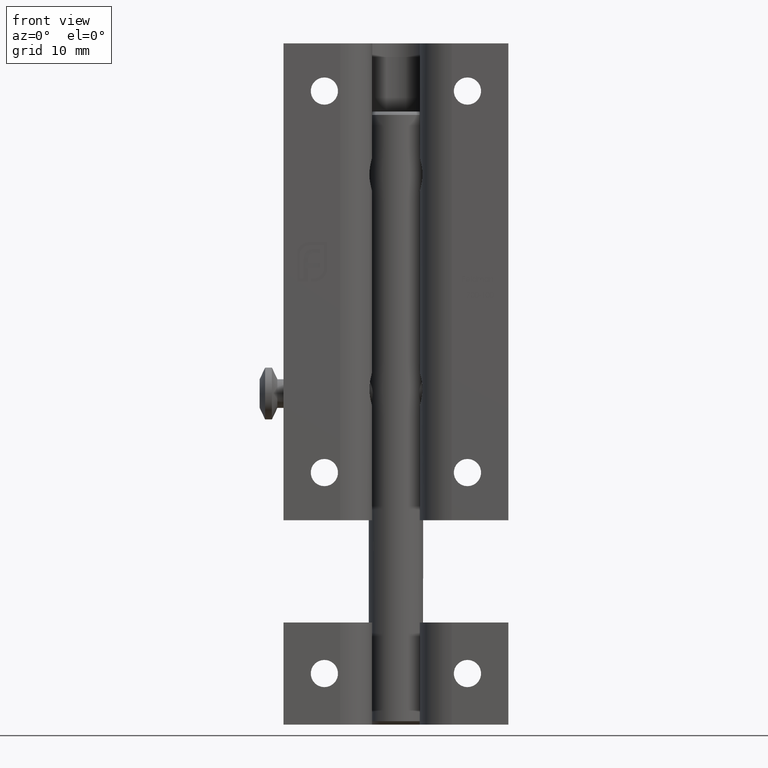
[diagram: clean part render]
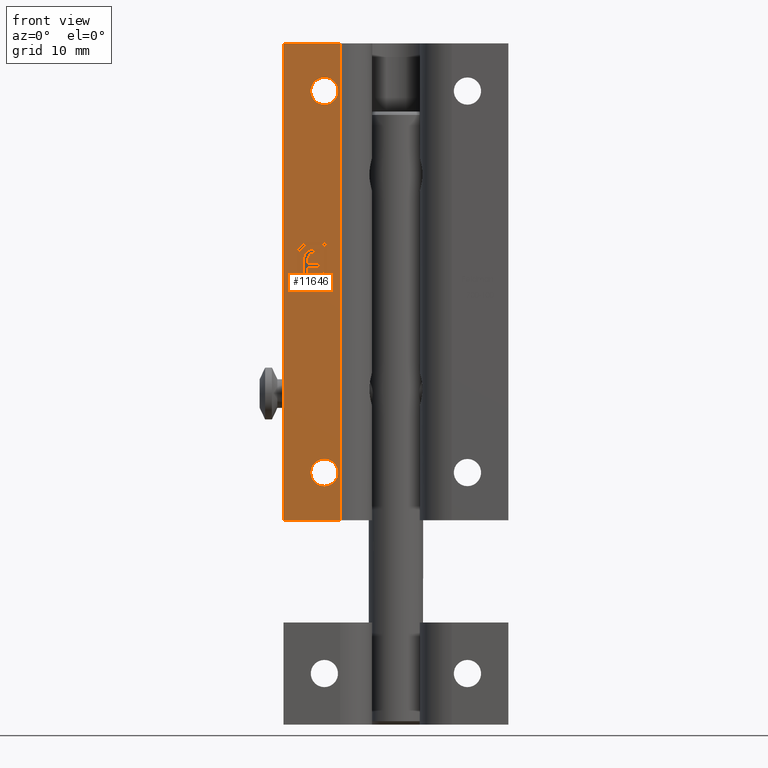
[diagram: same view with one face highlighted and labeled with its STEP entity id]
A machine part, front view. The second image highlights one B-rep face of the part: STEP entity #11646.
In plain terms, the highlighted planar face has unit normal (0, 1, 0).
Its self-contained STEP definition (entity closure, byte-faithful):
#60 = CARTESIAN_POINT ( 'NONE',  ( -10.10317604303577177, 0.000000000000000000, 3.889666433403312418 ) ) ;
#82 = CARTESIAN_POINT ( 'NONE',  ( -14.62223569108808796, -0.000000000000000000, 3.885432932975003251 ) ) ;
#89 = VERTEX_POINT ( 'NONE', #6036 ) ;
#203 = EDGE_CURVE ( 'NONE', #7521, #13235, #14881, .T. ) ;
#277 = CARTESIAN_POINT ( 'NONE',  ( -12.28418840599355200, 0.000000000000000000, 0.000000000000000000 ) ) ;
#299 = CARTESIAN_POINT ( 'NONE',  ( -13.61346904144832770, 0.000000000000000000, 5.010722171355585175 ) ) ;
#307 = VERTEX_POINT ( 'NONE', #7564 ) ;
#309 = CARTESIAN_POINT ( 'NONE',  ( -13.89516047767086881, 0.000000000000000000, 5.375413337686390847 ) ) ;
#311 = CARTESIAN_POINT ( 'NONE',  ( -13.44117464345564450, 0.000000000000000000, 3.881502216001866401 ) ) ;
#316 = CARTESIAN_POINT ( 'NONE',  ( -16.50000000000000000, 0.000000000000000000, -35.00000000000000000 ) ) ;
#351 = LINE ( 'NONE', #10546, #9461 ) ;
#412 = CARTESIAN_POINT ( 'NONE',  ( -11.21486712359753568, 0.000000000000000000, 0.1983647308749326710 ) ) ;
#427 = CARTESIAN_POINT ( 'NONE',  ( -12.91399946267654464, 0.000000000000000000, 2.109867039888033702 ) ) ;
#459 = CARTESIAN_POINT ( 'NONE',  ( -14.07222981671132800, 0.000000000000000000, 5.207563492515659753 ) ) ;
#484 = ORIENTED_EDGE ( 'NONE', *, *, #3095, .T. ) ;
#499 = EDGE_CURVE ( 'NONE', #7847, #2520, #2951, .T. ) ;
#500 = DIRECTION ( 'NONE',  ( 3.142292764019396830E-14, -0.000000000000000000, 1.000000000000000000 ) ) ;
#513 = CARTESIAN_POINT ( 'NONE',  ( -14.62265353312207949, 0.000000000000000000, 0.000000000000000000 ) ) ;
#643 = CARTESIAN_POINT ( 'NONE',  ( -10.17006340656878649, -0.000000000000000000, 1.461998794145167535 ) ) ;
#670 = CARTESIAN_POINT ( 'NONE',  ( -10.58572421636813310, 0.000000000000000000, 1.668727680216067766 ) ) ;
#675 = CARTESIAN_POINT ( 'NONE',  ( -8.192006389780432940, 0.000000000000000000, -35.00000000000000000 ) ) ;
#700 = VECTOR ( 'NONE', #7915, 1000.000000000000000 ) ;
#702 = CARTESIAN_POINT ( 'NONE',  ( -13.44117464345564450, 0.000000000000000000, 3.881502216001866401 ) ) ;
#707 = EDGE_CURVE ( 'NONE', #14064, #9397, #11871, .T. ) ;
#718 = CARTESIAN_POINT ( 'NONE',  ( -12.88579320570731213, 0.000000000000000000, 4.588625281920204024 ) ) ;
#722 = CARTESIAN_POINT ( 'NONE',  ( -11.00940417459630360, 0.000000000000000000, 0.8980639141590855967 ) ) ;
#767 = CARTESIAN_POINT ( 'NONE',  ( -12.53639140035715016, -0.000000000000000000, 4.731760121594401625 ) ) ;
#806 = CARTESIAN_POINT ( 'NONE',  ( -13.22736351545595213, 0.000000000000000000, 4.293754051528963167 ) ) ;
#827 = DIRECTION ( 'NONE',  ( -5.128799683801839653E-14, -0.000000000000000000, -1.000000000000000000 ) ) ;
#878 = CARTESIAN_POINT ( 'NONE',  ( -13.72458961896299279, 0.000000000000000000, 4.904362024725915425 ) ) ;
#931 = VERTEX_POINT ( 'NONE', #13838 ) ;
#966 = EDGE_CURVE ( 'NONE', #11146, #15266, #2588, .T. ) ;
#1025 = CARTESIAN_POINT ( 'NONE',  ( -12.39136544531972284, -0.000000000000000000, 4.145672816739518929 ) ) ;
#1074 = EDGE_CURVE ( 'NONE', #11484, #5861, #9702, .T. ) ;
#1110 = EDGE_CURVE ( 'NONE', #14153, #12324, #12958, .T. ) ;
#1138 = EDGE_CURVE ( 'NONE', #12324, #12762, #5371, .T. ) ;
#1153 = EDGE_CURVE ( 'NONE', #7700, #11484, #12072, .T. ) ;
#1240 = CARTESIAN_POINT ( 'NONE',  ( -13.54235907638162217, -0.000000000000000000, 3.209746666631985601 ) ) ;
#1316 = ORIENTED_EDGE ( 'NONE', *, *, #9369, .T. ) ;
#1323 = B_SPLINE_CURVE_WITH_KNOTS ( 'NONE', 3,
 ( #9157, #3120, #11551, #11451, #806, #13884, #2032 ),
 .UNSPECIFIED., .F., .F.,
 ( 4, 1, 1, 1, 4 ),
 ( 0.000000000000000000, 0.2650465622674543775, 0.5182727197139316289, 0.7624607574988796488, 1.000000000000000000 ),
 .UNSPECIFIED. ) ;
#1351 = EDGE_CURVE ( 'NONE', #7788, #7847, #14886, .T. ) ;
#1434 = CARTESIAN_POINT ( 'NONE',  ( -13.23361789003869404, 0.000000000000000000, 5.243443540006348158 ) ) ;
#1451 = CARTESIAN_POINT ( 'NONE',  ( -11.50100669384052843, 0.000000000000000000, 4.818054583624912901 ) ) ;
#1530 = ORIENTED_EDGE ( 'NONE', *, *, #5675, .T. ) ;
#1606 = FACE_BOUND ( 'NONE', #4799, .T. ) ;
#1621 = B_SPLINE_CURVE_WITH_KNOTS ( 'NONE', 3,
 ( #12866, #1025, #15070, #10645, #7103, #8182, #10594 ),
 .UNSPECIFIED., .F., .F.,
 ( 4, 1, 1, 1, 4 ),
 ( 0.000000000000000000, 0.2524546485597143342, 0.5031396088336669292, 0.7494862726423894284, 1.000000000000000000 ),
 .UNSPECIFIED. ) ;
#1691 = CARTESIAN_POINT ( 'NONE',  ( -13.07116191692449192, 0.000000000000000000, 5.768448980400471271 ) ) ;
#1738 = ORIENTED_EDGE ( 'NONE', *, *, #7416, .T. ) ;
#1739 = CARTESIAN_POINT ( 'NONE',  ( -12.86115893005340816, -0.000000000000000000, 3.630166364084306707 ) ) ;
#1742 = CARTESIAN_POINT ( 'NONE',  ( -10.10317604303577177, 0.000000000000000000, 1.968742710520177353 ) ) ;
#1753 = ORIENTED_EDGE ( 'NONE', *, *, #1153, .T. ) ;
#1769 = ORIENTED_EDGE ( 'NONE', *, *, #1138, .T. ) ;
#1816 = B_SPLINE_CURVE_WITH_KNOTS ( 'NONE', 3,
 ( #8810, #1739, #12344, #12399, #7615, #2993, #4196 ),
 .UNSPECIFIED., .F., .F.,
 ( 4, 1, 1, 1, 4 ),
 ( 0.000000000000000000, 0.2296577939907741839, 0.4728894664265899106, 0.7276593582172843355, 1.000000000000000000 ),
 .UNSPECIFIED. ) ;
#1834 = CARTESIAN_POINT ( 'NONE',  ( -14.16171433197381546, 0.000000000000000000, 3.993388716965996732 ) ) ;
#1857 = CARTESIAN_POINT ( 'NONE',  ( -12.59092971693360141, 0.000000000000000000, 4.715418707721017455 ) ) ;
#1887 = CARTESIAN_POINT ( 'NONE',  ( -13.76008289665097628, -0.000000000000000000, 4.867411171868104347 ) ) ;
#1893 = ORIENTED_EDGE ( 'NONE', *, *, #3935, .T. ) ;
#1900 = CARTESIAN_POINT ( 'NONE',  ( -13.65499322972569907, -0.000000000000000000, 5.534099549036850973 ) ) ;
#1924 = ORIENTED_EDGE ( 'NONE', *, *, #1351, .T. ) ;
#1930 = VECTOR ( 'NONE', #9780, 1000.000000000000000 ) ;
#2001 = CARTESIAN_POINT ( 'NONE',  ( -11.11900968055412520, 0.000000000000000000, 0.7927819420741029077 ) ) ;
#2014 = LINE ( 'NONE', #2789, #8696 ) ;
#2032 = CARTESIAN_POINT ( 'NONE',  ( -13.12626911511414818, 0.000000000000000000, 4.400513179379520246 ) ) ;
#2070 = DIRECTION ( 'NONE',  ( 0.000000000000000000, -0.000000000000000000, 1.000000000000000000 ) ) ;
#2131 = DIRECTION ( 'NONE',  ( 0.000000000000000000, 1.000000000000000000, 0.000000000000000000 ) ) ;
#2134 = EDGE_CURVE ( 'NONE', #89, #10956, #6416, .T. ) ;
#2147 = EDGE_LOOP ( 'NONE', ( #2992, #1924, #9509, #12876, #14043, #14104, #2296, #3822, #11013, #1893, #1753, #3170, #12048, #9723, #4448, #13385, #1769, #3861, #1530, #8322, #4708, #7463, #11279, #4678, #3593, #2681, #8283, #4006, #14971, #7368, #10438, #12422, #14924, #12659, #5433, #9350, #484, #1738, #4902, #10413 ) ) ;
#2200 = DIRECTION ( 'NONE',  ( 0.000000000000000000, -0.000000000000000000, -1.000000000000000000 ) ) ;
#2207 = CARTESIAN_POINT ( 'NONE',  ( -10.50000000000000000, 0.000000000000000000, -25.99999999999999645 ) ) ;
#2260 = CARTESIAN_POINT ( 'NONE',  ( -12.33256749326451285, -0.000000000000000000, 4.166733782436143230 ) ) ;
#2266 = DIRECTION ( 'NONE',  ( 0.000000000000000000, -0.000000000000000000, -1.000000000000000000 ) ) ;
#2296 = ORIENTED_EDGE ( 'NONE', *, *, #6567, .T. ) ;
#2322 = VERTEX_POINT ( 'NONE', #11111 ) ;
#2450 = EDGE_CURVE ( 'NONE', #6056, #2322, #6314, .T. ) ;
#2459 = B_SPLINE_CURVE_WITH_KNOTS ( 'NONE', 3,
 ( #5334, #1900, #7769, #8925, #12506, #5496, #10290 ),
 .UNSPECIFIED., .F., .F.,
 ( 4, 1, 1, 1, 4 ),
 ( 0.000000000000000000, 0.2494004055988085222, 0.4982698082868723399, 0.7477365097776053071, 1.000000000000000000 ),
 .UNSPECIFIED. ) ;
#2520 = VERTEX_POINT ( 'NONE', #1742 ) ;
#2588 = LINE ( 'NONE', #10050, #11699 ) ;
#2633 = CARTESIAN_POINT ( 'NONE',  ( -14.36256489304743411, 0.000000000000000000, 4.809890366223465996 ) ) ;
#2670 = CARTESIAN_POINT ( 'NONE',  ( -13.72458961896299279, 0.000000000000000000, 4.904362024725915425 ) ) ;
#2681 = ORIENTED_EDGE ( 'NONE', *, *, #966, .T. ) ;
#2779 = CARTESIAN_POINT ( 'NONE',  ( -13.20557865558533983, -1.355252715606880543E-17, 5.731280615815255608 ) ) ;
#2789 = CARTESIAN_POINT ( 'NONE',  ( -16.50000000000000000, 0.000000000000000000, 35.00000000000000000 ) ) ;
#2844 = CARTESIAN_POINT ( 'NONE',  ( -12.85101835700824680, 0.000000000000000000, 3.661068346162818177 ) ) ;
#2900 = AXIS2_PLACEMENT_3D ( 'NONE', #3372, #2131, #10468 ) ;
#2907 = CARTESIAN_POINT ( 'NONE',  ( -12.85101835700824680, 0.000000000000000000, 3.661068346162818177 ) ) ;
#2919 = CARTESIAN_POINT ( 'NONE',  ( -11.91297890807176074, -0.000000000000000000, 4.817272224833722305 ) ) ;
#2934 = LINE ( 'NONE', #277, #11325 ) ;
#2951 = LINE ( 'NONE', #60, #9288 ) ;
#2957 = CARTESIAN_POINT ( 'NONE',  ( -11.00940417459630360, 0.000000000000000000, 0.8980639141590855967 ) ) ;
#2984 = CARTESIAN_POINT ( 'NONE',  ( -13.99540732942276300, 0.000000000000000000, 4.550226223210583676 ) ) ;
#2992 = ORIENTED_EDGE ( 'NONE', *, *, #15135, .T. ) ;
#2993 = CARTESIAN_POINT ( 'NONE',  ( -12.91367384563480236, -0.000000000000000000, 3.282077637441727536 ) ) ;
#3035 = EDGE_CURVE ( 'NONE', #9904, #14153, #9887, .T. ) ;
#3066 = CARTESIAN_POINT ( 'NONE',  ( -12.72366599094108786, 0.000000000000000000, 3.903107813290452643 ) ) ;
#3090 = CARTESIAN_POINT ( 'NONE',  ( -11.15869272136560753, 0.000000000000000000, 4.518894331700490596 ) ) ;
#3095 = EDGE_CURVE ( 'NONE', #8668, #9377, #4442, .T. ) ;
#3120 = CARTESIAN_POINT ( 'NONE',  ( -13.42219583949539441, -0.000000000000000000, 3.932218595878612444 ) ) ;
#3170 = ORIENTED_EDGE ( 'NONE', *, *, #1074, .T. ) ;
#3180 = DIRECTION ( 'NONE',  ( -1.000000000000000000, -0.000000000000000000, -1.770657033693493779E-14 ) ) ;
#3270 = VECTOR ( 'NONE', #2070, 1000.000000000000000 ) ;
#3313 = VECTOR ( 'NONE', #500, 1000.000000000000000 ) ;
#3339 = ORIENTED_EDGE ( 'NONE', *, *, #7235, .T. ) ;
#3372 = CARTESIAN_POINT ( 'NONE',  ( -10.50000000000000000, 0.000000000000000000, 28.00000000000000355 ) ) ;
#3392 = CARTESIAN_POINT ( 'NONE',  ( -12.74539997332963281, 0.000000000000000000, 4.663368840172081420 ) ) ;
#3411 = CARTESIAN_POINT ( 'NONE',  ( -11.15869272136560575, 0.000000000000000000, 4.818054583624912901 ) ) ;
#3424 = CARTESIAN_POINT ( 'NONE',  ( -14.36256489304743411, 0.000000000000000000, 4.809890366223465996 ) ) ;
#3498 = DIRECTION ( 'NONE',  ( 1.000000000000000000, -0.000000000000000000, 1.150014362089557730E-14 ) ) ;
#3571 = CARTESIAN_POINT ( 'NONE',  ( -10.50000000000000000, 0.000000000000000000, -27.99999999999999645 ) ) ;
#3593 = ORIENTED_EDGE ( 'NONE', *, *, #5592, .T. ) ;
#3610 = CARTESIAN_POINT ( 'NONE',  ( -13.69309906612884475, 0.000000000000000000, 5.510846745976207828 ) ) ;
#3621 = CARTESIAN_POINT ( 'NONE',  ( -12.03634609202107875, 0.000000000000000000, 2.109867039888033702 ) ) ;
#3636 = CARTESIAN_POINT ( 'NONE',  ( -14.52251276381042899, 0.000000000000000000, 4.467580840298241540 ) ) ;
#3645 = CARTESIAN_POINT ( 'NONE',  ( -12.16894251106374725, 0.000000000000000000, 4.205937893213496537 ) ) ;
#3649 = DIRECTION ( 'NONE',  ( -0.000000000000000000, -0.000000000000000000, -1.000000000000000000 ) ) ;
#3660 = EDGE_CURVE ( 'NONE', #13691, #9142, #1816, .T. ) ;
#3712 = CARTESIAN_POINT ( 'NONE',  ( -13.09654552205322275, 0.000000000000000000, 5.292870966762778018 ) ) ;
#3775 = CARTESIAN_POINT ( 'NONE',  ( -11.10387583309875303, 0.000000000000000000, 0.2600886400746442728 ) ) ;
#3822 = ORIENTED_EDGE ( 'NONE', *, *, #7466, .T. ) ;
#3861 = ORIENTED_EDGE ( 'NONE', *, *, #11003, .T. ) ;
#3918 = CARTESIAN_POINT ( 'NONE',  ( -13.69309906612884475, 0.000000000000000000, 5.510846745976207828 ) ) ;
#3935 = EDGE_CURVE ( 'NONE', #3979, #7700, #351, .T. ) ;
#3972 = CARTESIAN_POINT ( 'NONE',  ( -11.32903091304796561, 0.000000000000000000, 0.1444498286057782355 ) ) ;
#3979 = VERTEX_POINT ( 'NONE', #4854 ) ;
#4006 = ORIENTED_EDGE ( 'NONE', *, *, #4489, .T. ) ;
#4032 = CARTESIAN_POINT ( 'NONE',  ( -13.16065473897691263, -0.000000000000000000, 5.743702792753435205 ) ) ;
#4046 = B_SPLINE_CURVE_WITH_KNOTS ( 'NONE', 3,
 ( #7736, #7793, #12579, #10196, #6679, #643, #12528 ),
 .UNSPECIFIED., .F., .F.,
 ( 4, 1, 1, 1, 4 ),
 ( 0.000000000000000000, 0.2525049582863184705, 0.5021773156323381393, 0.7501012456036263432, 1.000000000000000000 ),
 .UNSPECIFIED. ) ;
#4055 = CIRCLE ( 'NONE', #2900, 2.000000000000001776 ) ;
#4069 = CARTESIAN_POINT ( 'NONE',  ( -11.15869272136560575, 0.000000000000000000, 4.219734079776067404 ) ) ;
#4196 = CARTESIAN_POINT ( 'NONE',  ( -12.91399946267654464, 0.000000000000000000, 3.243526941917424633 ) ) ;
#4266 = CARTESIAN_POINT ( 'NONE',  ( -10.18248558350696342, 0.000000000000000000, 1.417074877536738997 ) ) ;
#4281 = CARTESIAN_POINT ( 'NONE',  ( -13.12626911511414818, 0.000000000000000000, 4.400513179379520246 ) ) ;
#4285 = CARTESIAN_POINT ( 'NONE',  ( -14.16545735864109012, 0.000000000000000000, 3.841847445766270130 ) ) ;
#4342 = CARTESIAN_POINT ( 'NONE',  ( -11.36353997611163891, 0.000000000000000000, 0.6272462036993181611 ) ) ;
#4391 = DIRECTION ( 'NONE',  ( -3.458957926284952733E-14, -0.000000000000000000, -1.000000000000000000 ) ) ;
#4442 = LINE ( 'NONE', #14717, #3313 ) ;
#4448 = ORIENTED_EDGE ( 'NONE', *, *, #3035, .T. ) ;
#4489 = EDGE_CURVE ( 'NONE', #7119, #7125, #1621, .T. ) ;
#4510 = VERTEX_POINT ( 'NONE', #7351 ) ;
#4551 = CARTESIAN_POINT ( 'NONE',  ( -16.50000000000000000, 0.000000000000000000, 35.00000000000000000 ) ) ;
#4598 = CARTESIAN_POINT ( 'NONE',  ( -10.50000000000000000, 0.000000000000000000, 30.00000000000000711 ) ) ;
#4639 = VECTOR ( 'NONE', #3498, 1000.000000000000000 ) ;
#4648 = CARTESIAN_POINT ( 'NONE',  ( -12.36349794646474365, 0.000000000000000000, 4.156752974107768672 ) ) ;
#4678 = ORIENTED_EDGE ( 'NONE', *, *, #12547, .T. ) ;
#4708 = ORIENTED_EDGE ( 'NONE', *, *, #6073, .T. ) ;
#4799 = EDGE_LOOP ( 'NONE', ( #3339 ) ) ;
#4830 = CARTESIAN_POINT ( 'NONE',  ( -14.60705808407206341, 0.000000000000000000, 4.099617897534930222 ) ) ;
#4854 = CARTESIAN_POINT ( 'NONE',  ( -12.49645805843115198, 0.000000000000000000, 0.4571961744809890371 ) ) ;
#4871 = EDGE_CURVE ( 'NONE', #12496, #12689, #6265, .T. ) ;
#4902 = ORIENTED_EDGE ( 'NONE', *, *, #2134, .T. ) ;
#4906 = CARTESIAN_POINT ( 'NONE',  ( -13.54381051935954083, 0.000000000000000000, 3.140891066013529631 ) ) ;
#4949 = CARTESIAN_POINT ( 'NONE',  ( -12.65391082260190103, 0.000000000000000000, 5.353393981805458779 ) ) ;
#4953 = CARTESIAN_POINT ( 'NONE',  ( -12.65391082260190103, 0.000000000000000000, 5.353393981805458779 ) ) ;
#4985 = CARTESIAN_POINT ( 'NONE',  ( -14.08323202624081105, 0.000000000000000000, 0.000000000000000000 ) ) ;
#5069 = CARTESIAN_POINT ( 'NONE',  ( -12.91399946267654109, 0.000000000000000000, 0.2285980872404944908 ) ) ;
#5305 = VERTEX_POINT ( 'NONE', #6561 ) ;
#5334 = CARTESIAN_POINT ( 'NONE',  ( -13.69309906612884475, 0.000000000000000000, 5.510846745976207828 ) ) ;
#5371 = LINE ( 'NONE', #12551, #13958 ) ;
#5379 = CARTESIAN_POINT ( 'NONE',  ( -14.05632296374947643, 0.000000000000000000, 4.418931424541740149 ) ) ;
#5410 = EDGE_CURVE ( 'NONE', #13924, #3979, #12013, .T. ) ;
#5422 = CARTESIAN_POINT ( 'NONE',  ( -12.59092971693360141, 0.000000000000000000, 4.715418707721017455 ) ) ;
#5433 = ORIENTED_EDGE ( 'NONE', *, *, #203, .T. ) ;
#5456 = VERTEX_POINT ( 'NONE', #15340 ) ;
#5461 = CARTESIAN_POINT ( 'NONE',  ( -12.77259566674731950, 0.000000000000000000, 3.827653029397890094 ) ) ;
#5471 = CARTESIAN_POINT ( 'NONE',  ( -16.50000000000000000, 0.000000000000000000, 35.00000000000000000 ) ) ;
#5496 = CARTESIAN_POINT ( 'NONE',  ( -13.24858992927630297, -0.000000000000000000, 5.717563234487216484 ) ) ;
#5515 = CARTESIAN_POINT ( 'NONE',  ( -12.84023606388257477, -0.000000000000000000, 3.690639720102486532 ) ) ;
#5592 = EDGE_CURVE ( 'NONE', #9717, #11146, #11088, .T. ) ;
#5675 = EDGE_CURVE ( 'NONE', #10674, #10989, #15195, .T. ) ;
#5819 = DIRECTION ( 'NONE',  ( 0.000000000000000000, 0.000000000000000000, 1.000000000000000000 ) ) ;
#5861 = VERTEX_POINT ( 'NONE', #6982 ) ;
#5981 = EDGE_CURVE ( 'NONE', #2520, #6056, #4046, .T. ) ;
#5984 = VERTEX_POINT ( 'NONE', #702 ) ;
#6036 = CARTESIAN_POINT ( 'NONE',  ( -14.36256489304743411, 0.000000000000000000, 4.809890366223465996 ) ) ;
#6039 = VERTEX_POINT ( 'NONE', #8945 ) ;
#6056 = VERTEX_POINT ( 'NONE', #4266 ) ;
#6073 = EDGE_CURVE ( 'NONE', #5984, #14064, #1323, .T. ) ;
#6265 = LINE ( 'NONE', #10158, #700 ) ;
#6309 = DIRECTION ( 'NONE',  ( -1.000000000000000000, -0.000000000000000000, -1.394392414033622872E-14 ) ) ;
#6314 = B_SPLINE_CURVE_WITH_KNOTS ( 'NONE', 3,
 ( #10024, #9035, #8928, #8875, #13707, #14909, #7620 ),
 .UNSPECIFIED., .F., .F.,
 ( 4, 1, 1, 1, 4 ),
 ( 0.000000000000000000, 0.2531688454537568966, 0.5035614958825502807, 0.7514299623983492493, 1.000000000000000000 ),
 .UNSPECIFIED. ) ;
#6330 = CARTESIAN_POINT ( 'NONE',  ( -11.81414830178728970, 0.000000000000000000, 0.01559544905000916082 ) ) ;
#6416 = B_SPLINE_CURVE_WITH_KNOTS ( 'NONE', 3,
 ( #2633, #9802, #10999, #459, #309, #10953, #3918 ),
 .UNSPECIFIED., .F., .F.,
 ( 4, 1, 1, 1, 4 ),
 ( 0.000000000000000000, 0.2548261097762418159, 0.5042880443381981825, 0.7513476757168006115, 1.000000000000000000 ),
 .UNSPECIFIED. ) ;
#6443 = CARTESIAN_POINT ( 'NONE',  ( -11.95412075962079612, 0.000000000000000000, 4.219734079776067404 ) ) ;
#6494 = LINE ( 'NONE', #12268, #7766 ) ;
#6561 = CARTESIAN_POINT ( 'NONE',  ( -16.50000000000000000, 0.000000000000000000, 35.00000000000000000 ) ) ;
#6567 = EDGE_CURVE ( 'NONE', #4510, #13127, #9450, .T. ) ;
#6574 = CARTESIAN_POINT ( 'NONE',  ( -10.10317604303577177, 0.000000000000000000, 5.810590156286447261 ) ) ;
#6588 = B_SPLINE_CURVE_WITH_KNOTS ( 'NONE', 3,
 ( #7681, #15034, #3066, #5461, #6678, #5515, #2907 ),
 .UNSPECIFIED., .F., .F.,
 ( 4, 1, 1, 1, 4 ),
 ( 0.000000000000000000, 0.2455891591026261311, 0.4905057002791295417, 0.7406289399192080847, 1.000000000000000000 ),
 .UNSPECIFIED. ) ;
#6594 = CARTESIAN_POINT ( 'NONE',  ( -14.10675261009457593, 0.000000000000000000, 4.283215778886456881 ) ) ;
#6678 = CARTESIAN_POINT ( 'NONE',  ( -12.81905591801842803, 0.000000000000000000, 3.748728106881190403 ) ) ;
#6679 = CARTESIAN_POINT ( 'NONE',  ( -10.14531721892174865, 0.000000000000000000, 1.551491616197590684 ) ) ;
#6724 = CARTESIAN_POINT ( 'NONE',  ( -10.40291945334601209, 0.000000000000000000, 0.9365523676230465000 ) ) ;
#6752 = CARTESIAN_POINT ( 'NONE',  ( -11.23961600784482151, 0.000000000000000000, 0.7047935450182917227 ) ) ;
#6801 = CARTESIAN_POINT ( 'NONE',  ( -11.00940417459630360, 0.000000000000000000, 0.8980639141590855967 ) ) ;
#6807 = CARTESIAN_POINT ( 'NONE',  ( -12.03634609202107519, 0.000000000000000000, 2.700023326335432738 ) ) ;
#6818 = VECTOR ( 'NONE', #13285, 1000.000000000000000 ) ;
#6824 = EDGE_CURVE ( 'NONE', #9142, #15300, #14480, .T. ) ;
#6950 = VERTEX_POINT ( 'NONE', #4598 ) ;
#6982 = CARTESIAN_POINT ( 'NONE',  ( -10.56037221751675936, 0.000000000000000000, 1.968742710520177353 ) ) ;
#6992 = EDGE_CURVE ( 'NONE', #10066, #9904, #6494, .T. ) ;
#7082 = CARTESIAN_POINT ( 'NONE',  ( -14.62265353312207949, 0.000000000000000000, 3.841847445766270130 ) ) ;
#7103 = CARTESIAN_POINT ( 'NONE',  ( -12.59720294484024450, 0.000000000000000000, 4.028425111272789572 ) ) ;
#7106 = DIRECTION ( 'NONE',  ( 0.000000000000000000, -0.000000000000000000, 1.000000000000000000 ) ) ;
#7117 = CARTESIAN_POINT ( 'NONE',  ( -11.14097711961894355, -0.000000000000000000, 0.2394560622383697657 ) ) ;
#7119 = VERTEX_POINT ( 'NONE', #7796 ) ;
#7125 = VERTEX_POINT ( 'NONE', #7685 ) ;
#7183 = CARTESIAN_POINT ( 'NONE',  ( -14.47820370451630367, 0.000000000000000000, 4.584735286274251642 ) ) ;
#7216 = CARTESIAN_POINT ( 'NONE',  ( -13.54381051935954083, 0.000000000000000000, 3.140891066013529631 ) ) ;
#7235 = EDGE_CURVE ( 'NONE', #6950, #6950, #4055, .T. ) ;
#7237 = CARTESIAN_POINT ( 'NONE',  ( -14.42428880224714938, 0.000000000000000000, 4.698899075724689567 ) ) ;
#7267 = B_SPLINE_CURVE_WITH_KNOTS ( 'NONE', 3,
 ( #7082, #82, #11797, #4830, #8315, #14305, #3636, #7183, #7237, #8372, #3424 ),
 .UNSPECIFIED., .F., .F.,
 ( 4, 1, 1, 1, 1, 1, 1, 1, 4 ),
 ( 0.000000000000000000, 0.1287995950824966374, 0.2547407131451109308, 0.3804244813366444711, 0.5045050273662052831, 0.6270584524605820054, 0.7500370845058724756, 0.8744898464228469948, 1.000000000000000000 ),
 .UNSPECIFIED. ) ;
#7313 = CARTESIAN_POINT ( 'NONE',  ( -13.48928667742433163, 0.000000000000000000, 3.714175404962777538 ) ) ;
#7351 = CARTESIAN_POINT ( 'NONE',  ( -11.10387583309875303, 0.000000000000000000, 0.2600886400746442728 ) ) ;
#7364 = FACE_OUTER_BOUND ( 'NONE', #10811, .T. ) ;
#7368 = ORIENTED_EDGE ( 'NONE', *, *, #3660, .T. ) ;
#7373 = DIRECTION ( 'NONE',  ( -1.000000000000000000, -0.000000000000000000, -0.000000000000000000 ) ) ;
#7400 = VECTOR ( 'NONE', #8461, 1000.000000000000000 ) ;
#7402 = CARTESIAN_POINT ( 'NONE',  ( -13.52114731410331672, 0.000000000000000000, 3.535361911055932449 ) ) ;
#7416 = EDGE_CURVE ( 'NONE', #9377, #89, #7267, .T. ) ;
#7463 = ORIENTED_EDGE ( 'NONE', *, *, #707, .T. ) ;
#7466 = EDGE_CURVE ( 'NONE', #13127, #13924, #2934, .T. ) ;
#7507 = CARTESIAN_POINT ( 'NONE',  ( -12.93368139677698636, 0.000000000000000000, 5.792037863360514294 ) ) ;
#7521 = VERTEX_POINT ( 'NONE', #427 ) ;
#7538 = VECTOR ( 'NONE', #12890, 1000.000000000000000 ) ;
#7564 = CARTESIAN_POINT ( 'NONE',  ( -11.15869272136560575, 0.000000000000000000, 2.109867039888033702 ) ) ;
#7615 = CARTESIAN_POINT ( 'NONE',  ( -12.91304361956390778, 0.000000000000000000, 3.356691832203205106 ) ) ;
#7618 = CARTESIAN_POINT ( 'NONE',  ( -13.54381051935954083, 0.000000000000000000, 0.4571961744809890371 ) ) ;
#7620 = CARTESIAN_POINT ( 'NONE',  ( -10.40291945334601209, 0.000000000000000000, 0.9365523676230465000 ) ) ;
#7637 = CARTESIAN_POINT ( 'NONE',  ( -12.65391082260190103, 0.000000000000000000, 5.810590156286447261 ) ) ;
#7644 = DIRECTION ( 'NONE',  ( 1.000000000000000000, 0.000000000000000000, 0.000000000000000000 ) ) ;
#7681 = CARTESIAN_POINT ( 'NONE',  ( -12.66207504000334794, 0.000000000000000000, 3.967809657102869814 ) ) ;
#7685 = CARTESIAN_POINT ( 'NONE',  ( -12.66207504000334794, 0.000000000000000000, 3.967809657102869814 ) ) ;
#7700 = VERTEX_POINT ( 'NONE', #15285 ) ;
#7736 = CARTESIAN_POINT ( 'NONE',  ( -10.10317604303577177, 0.000000000000000000, 1.968742710520177353 ) ) ;
#7751 = CARTESIAN_POINT ( 'NONE',  ( -12.91399946267654464, 0.000000000000000000, 0.000000000000000000 ) ) ;
#7761 = CARTESIAN_POINT ( 'NONE',  ( -10.67032265931586466, 0.000000000000000000, 1.389035643083381455 ) ) ;
#7766 = VECTOR ( 'NONE', #6309, 1000.000000000000000 ) ;
#7769 = CARTESIAN_POINT ( 'NONE',  ( -13.57886268874434599, 0.000000000000000000, 5.580555647194921143 ) ) ;
#7788 = VERTEX_POINT ( 'NONE', #7637 ) ;
#7793 = CARTESIAN_POINT ( 'NONE',  ( -10.10394190114853430, -0.000000000000000000, 1.921652882509248261 ) ) ;
#7796 = CARTESIAN_POINT ( 'NONE',  ( -12.36349794646474365, 0.000000000000000000, 4.156752974107768672 ) ) ;
#7816 = CARTESIAN_POINT ( 'NONE',  ( -10.73308000943858076, 0.000000000000000000, 1.256385313432260675 ) ) ;
#7847 = VERTEX_POINT ( 'NONE', #6574 ) ;
#7871 = LINE ( 'NONE', #12947, #8788 ) ;
#7872 = CARTESIAN_POINT ( 'NONE',  ( -11.63055042043576748, 0.000000000000000000, 0.5159009230275050095 ) ) ;
#7915 = DIRECTION ( 'NONE',  ( 1.000000000000000000, 0.000000000000000000, 0.000000000000000000 ) ) ;
#7917 = CARTESIAN_POINT ( 'NONE',  ( -10.56037221751675936, 0.000000000000000000, 5.353393981805458779 ) ) ;
#7925 = B_SPLINE_CURVE_WITH_KNOTS ( 'NONE', 3,
 ( #5422, #767, #8852, #10057, #12385, #2919, #8961 ),
 .UNSPECIFIED., .F., .F.,
 ( 4, 1, 1, 1, 4 ),
 ( 0.000000000000000000, 0.2252149288326735221, 0.4659087912857223790, 0.7243281698455820150, 1.000000000000000000 ),
 .UNSPECIFIED. ) ;
#7927 = CARTESIAN_POINT ( 'NONE',  ( -11.77291158733593868, 0.000000000000000000, 0.4831295257569785395 ) ) ;
#7996 = CARTESIAN_POINT ( 'NONE',  ( -10.44810380303804287, -0.000000000000000000, 0.8678670432230652931 ) ) ;
#8030 = CARTESIAN_POINT ( 'NONE',  ( -13.12626911511414818, 0.000000000000000000, 4.400513179379520246 ) ) ;
#8182 = CARTESIAN_POINT ( 'NONE',  ( -12.64033044120334992, -0.000000000000000000, 3.988127464454255477 ) ) ;
#8283 = ORIENTED_EDGE ( 'NONE', *, *, #13943, .T. ) ;
#8303 = CARTESIAN_POINT ( 'NONE',  ( -11.95412075962079612, 0.000000000000000000, 4.219734079776067404 ) ) ;
#8315 = CARTESIAN_POINT ( 'NONE',  ( -14.58857398077516976, 0.000000000000000000, 4.225409501822396052 ) ) ;
#8322 = ORIENTED_EDGE ( 'NONE', *, *, #8537, .T. ) ;
#8372 = CARTESIAN_POINT ( 'NONE',  ( -14.38319747088371159, -0.000000000000000000, 4.772789079703278148 ) ) ;
#8458 = CARTESIAN_POINT ( 'NONE',  ( -13.45687124409516677, -0.000000000000000000, 3.826911671547340799 ) ) ;
#8461 = DIRECTION ( 'NONE',  ( -1.000000000000000000, -0.000000000000000000, 8.387322791179642355E-15 ) ) ;
#8528 = VECTOR ( 'NONE', #827, 1000.000000000000000 ) ;
#8537 = EDGE_CURVE ( 'NONE', #10989, #5984, #8752, .T. ) ;
#8593 = CARTESIAN_POINT ( 'NONE',  ( -13.68718822153434544, -0.000000000000000000, 4.940161137758246390 ) ) ;
#8668 = VERTEX_POINT ( 'NONE', #513 ) ;
#8696 = VECTOR ( 'NONE', #13497, 1000.000000000000000 ) ;
#8704 = CARTESIAN_POINT ( 'NONE',  ( -11.94212959398924845, 0.000000000000000000, 0.001244252844152258890 ) ) ;
#8752 = B_SPLINE_CURVE_WITH_KNOTS ( 'NONE', 3,
 ( #7216, #1240, #14537, #7402, #7313, #8458, #311 ),
 .UNSPECIFIED., .F., .F.,
 ( 4, 1, 1, 1, 4 ),
 ( 0.000000000000000000, 0.2752367449667303401, 0.5313220627563618459, 0.7730509928784795592, 1.000000000000000000 ),
 .UNSPECIFIED. ) ;
#8788 = VECTOR ( 'NONE', #3649, 1000.000000000000000 ) ;
#8804 = VECTOR ( 'NONE', #12670, 1000.000000000000000 ) ;
#8810 = CARTESIAN_POINT ( 'NONE',  ( -12.85101835700824680, 0.000000000000000000, 3.661068346162818177 ) ) ;
#8852 = CARTESIAN_POINT ( 'NONE',  ( -12.42356637012226805, 0.000000000000000000, 4.765566088299681091 ) ) ;
#8867 = VERTEX_POINT ( 'NONE', #15366 ) ;
#8875 = CARTESIAN_POINT ( 'NONE',  ( -10.27588029390663849, 0.000000000000000000, 1.167493066460696838 ) ) ;
#8883 = CIRCLE ( 'NONE', #12076, 2.000000000000001776 ) ;
#8919 = EDGE_LOOP ( 'NONE', ( #14056 ) ) ;
#8925 = CARTESIAN_POINT ( 'NONE',  ( -13.45774067968315535, 0.000000000000000000, 5.637619863584992785 ) ) ;
#8928 = CARTESIAN_POINT ( 'NONE',  ( -10.22352243753976531, 0.000000000000000000, 1.289684066689730457 ) ) ;
#8945 = CARTESIAN_POINT ( 'NONE',  ( -13.20557865558533983, -1.355252715606880543E-17, 5.731280615815255608 ) ) ;
#8961 = CARTESIAN_POINT ( 'NONE',  ( -11.84332066631545288, 0.000000000000000000, 4.818054583624912901 ) ) ;
#8969 = CARTESIAN_POINT ( 'NONE',  ( -10.90304402796663297, 0.000000000000000000, 1.009184491673756234 ) ) ;
#9016 = CARTESIAN_POINT ( 'NONE',  ( -10.62089523255944634, 0.000000000000000000, 1.526108011068861625 ) ) ;
#9035 = CARTESIAN_POINT ( 'NONE',  ( -10.19621471842997096, -0.000000000000000000, 1.374455488909341661 ) ) ;
#9142 = VERTEX_POINT ( 'NONE', #12997 ) ;
#9157 = CARTESIAN_POINT ( 'NONE',  ( -13.44117464345564450, 0.000000000000000000, 3.881502216001866401 ) ) ;
#9248 = CARTESIAN_POINT ( 'NONE',  ( -11.03296624102125101, -0.000000000000000000, 0.3037346125863645274 ) ) ;
#9288 = VECTOR ( 'NONE', #2266, 1000.000000000000000 ) ;
#9300 = CARTESIAN_POINT ( 'NONE',  ( -10.89242543218187187, 0.000000000000000000, 0.3902396974368653737 ) ) ;
#9335 = CARTESIAN_POINT ( 'NONE',  ( -11.15869272136560753, 0.000000000000000000, 2.404945183111732998 ) ) ;
#9350 = ORIENTED_EDGE ( 'NONE', *, *, #13458, .T. ) ;
#9369 = EDGE_CURVE ( 'NONE', #5305, #12496, #2014, .T. ) ;
#9377 = VERTEX_POINT ( 'NONE', #9820 ) ;
#9397 = VERTEX_POINT ( 'NONE', #1857 ) ;
#9450 = B_SPLINE_CURVE_WITH_KNOTS ( 'NONE', 3,
 ( #3775, #7117, #412, #3972, #14488, #9761, #13379, #6330, #8704, #9853, #13330 ),
 .UNSPECIFIED., .F., .F.,
 ( 4, 1, 1, 1, 1, 1, 1, 1, 4 ),
 ( 0.000000000000000000, 0.1255101535771534216, 0.2499629154941273579, 0.3729415475394186053, 0.4954949726337948834, 0.6195755186633564726, 0.7452592868548886251, 0.8712004049175039455, 1.000000000000000000 ),
 .UNSPECIFIED. ) ;
#9461 = VECTOR ( 'NONE', #14124, 1000.000000000000000 ) ;
#9502 = DIRECTION ( 'NONE',  ( 1.000000000000000000, -0.000000000000000000, -1.408477185892479043E-15 ) ) ;
#9504 = EDGE_CURVE ( 'NONE', #2322, #4510, #14837, .T. ) ;
#9509 = ORIENTED_EDGE ( 'NONE', *, *, #499, .T. ) ;
#9516 = CARTESIAN_POINT ( 'NONE',  ( -12.49645805843115198, 0.000000000000000000, 0.000000000000000000 ) ) ;
#9702 = B_SPLINE_CURVE_WITH_KNOTS ( 'NONE', 3,
 ( #722, #13696, #8969, #15061, #7816, #7761, #9016, #670, #15113, #12498, #13905 ),
 .UNSPECIFIED., .F., .F.,
 ( 4, 1, 1, 1, 1, 1, 1, 1, 4 ),
 ( 0.000000000000000000, 0.1300684187865161212, 0.2563684206270612775, 0.3806087965304097431, 0.5030361388155299984, 0.6245546842700436807, 0.7464187435721220121, 0.8718075328738725815, 1.000000000000000000 ),
 .UNSPECIFIED. ) ;
#9717 = VERTEX_POINT ( 'NONE', #3411 ) ;
#9718 = EDGE_CURVE ( 'NONE', #12697, #12697, #8883, .T. ) ;
#9723 = ORIENTED_EDGE ( 'NONE', *, *, #6992, .T. ) ;
#9751 = CARTESIAN_POINT ( 'NONE',  ( -13.36626821968981993, 0.000000000000000000, 5.180686189883640935 ) ) ;
#9761 = CARTESIAN_POINT ( 'NONE',  ( -11.56594000953547585, 0.000000000000000000, 0.06415540619465236183 ) ) ;
#9763 = CARTESIAN_POINT ( 'NONE',  ( -12.06328664237194737, 0.000000000000000000, 4.218166537496691681 ) ) ;
#9780 = DIRECTION ( 'NONE',  ( -1.000000000000000000, -0.000000000000000000, -0.000000000000000000 ) ) ;
#9802 = CARTESIAN_POINT ( 'NONE',  ( -14.31886811240461910, -0.000000000000000000, 4.880760488884367199 ) ) ;
#9808 = EDGE_CURVE ( 'NONE', #307, #7521, #15231, .T. ) ;
#9820 = CARTESIAN_POINT ( 'NONE',  ( -14.62265353312207949, 0.000000000000000000, 3.841847445766270130 ) ) ;
#9853 = CARTESIAN_POINT ( 'NONE',  ( -12.02833326634721622, -0.000000000000000000, 0.0004178420339902086801 ) ) ;
#9863 = ORIENTED_EDGE ( 'NONE', *, *, #14491, .F. ) ;
#9887 = B_SPLINE_CURVE_WITH_KNOTS ( 'NONE', 3,
 ( #4949, #13270, #12027, #14476, #3712, #1434, #9751, #12125, #299, #8593, #11085 ),
 .UNSPECIFIED., .F., .F.,
 ( 4, 1, 1, 1, 1, 1, 1, 1, 4 ),
 ( 0.000000000000000000, 0.1281924671261278903, 0.2535812564278783765, 0.3754453157299569854, 0.4969638611844709453, 0.6193912034695908675, 0.7436315793729399992, 0.8699315812134841286, 1.000000000000000000 ),
 .UNSPECIFIED. ) ;
#9904 = VERTEX_POINT ( 'NONE', #4953 ) ;
#9959 = LINE ( 'NONE', #1451, #6818 ) ;
#9976 = FACE_BOUND ( 'NONE', #2147, .T. ) ;
#10024 = CARTESIAN_POINT ( 'NONE',  ( -10.18248558350696342, 0.000000000000000000, 1.417074877536738997 ) ) ;
#10050 = CARTESIAN_POINT ( 'NONE',  ( -11.55640674049320182, 0.000000000000000000, 4.219734079776068292 ) ) ;
#10057 = CARTESIAN_POINT ( 'NONE',  ( -12.24260186919839377, 0.000000000000000000, 4.794583868466734344 ) ) ;
#10066 = VERTEX_POINT ( 'NONE', #7917 ) ;
#10087 = CARTESIAN_POINT ( 'NONE',  ( -12.26917281927110714, 0.000000000000000000, 4.187190323634292888 ) ) ;
#10105 = CARTESIAN_POINT ( 'NONE',  ( -11.99109201084561960, -0.000000000000000000, 4.219203199633335899 ) ) ;
#10152 = ORIENTED_EDGE ( 'NONE', *, *, #4871, .T. ) ;
#10158 = CARTESIAN_POINT ( 'NONE',  ( -16.50000000000000000, 0.000000000000000000, -35.00000000000000000 ) ) ;
#10196 = CARTESIAN_POINT ( 'NONE',  ( -10.12172833596170740, 0.000000000000000000, 1.688972136345094688 ) ) ;
#10223 = CARTESIAN_POINT ( 'NONE',  ( -12.07191875355595023, 0.000000000000000000, 0.4571961744809890926 ) ) ;
#10274 = CARTESIAN_POINT ( 'NONE',  ( -13.08950631809668153, -0.000000000000000000, 4.435136001651484250 ) ) ;
#10290 = CARTESIAN_POINT ( 'NONE',  ( -13.20557865558533983, -1.355252715606880543E-17, 5.731280615815255608 ) ) ;
#10299 = CARTESIAN_POINT ( 'NONE',  ( -10.53797657497878149, 0.000000000000000000, 0.7312502602539839858 ) ) ;
#10319 = VECTOR ( 'NONE', #7644, 1000.000000000000000 ) ;
#10335 = CARTESIAN_POINT ( 'NONE',  ( -11.04635502745411202, -0.000000000000000000, 0.8625706364711051011 ) ) ;
#10357 = CARTESIAN_POINT ( 'NONE',  ( -11.10387583309875303, 0.000000000000000000, 0.2600886400746442728 ) ) ;
#10385 = EDGE_CURVE ( 'NONE', #7125, #13691, #6588, .T. ) ;
#10413 = ORIENTED_EDGE ( 'NONE', *, *, #15324, .T. ) ;
#10438 = ORIENTED_EDGE ( 'NONE', *, *, #6824, .T. ) ;
#10468 = DIRECTION ( 'NONE',  ( 0.000000000000000000, 0.000000000000000000, 1.000000000000000000 ) ) ;
#10474 = DIRECTION ( 'NONE',  ( 0.000000000000000000, -0.000000000000000000, 1.000000000000000000 ) ) ;
#10546 = CARTESIAN_POINT ( 'NONE',  ( -12.28418840599354844, 0.000000000000000000, 0.4571961744809890926 ) ) ;
#10594 = CARTESIAN_POINT ( 'NONE',  ( -12.66207504000334794, 0.000000000000000000, 3.967809657102869814 ) ) ;
#10637 = CARTESIAN_POINT ( 'NONE',  ( -11.37854343281883729, 0.000000000000000000, 5.810590156286448149 ) ) ;
#10645 = CARTESIAN_POINT ( 'NONE',  ( -12.52494004665315686, 0.000000000000000000, 4.080346817134357984 ) ) ;
#10649 = DIRECTION ( 'NONE',  ( 0.000000000000000000, 1.000000000000000000, 0.000000000000000000 ) ) ;
#10674 = VERTEX_POINT ( 'NONE', #7618 ) ;
#10811 = EDGE_LOOP ( 'NONE', ( #10152, #9863, #11288, #1316 ) ) ;
#10953 = CARTESIAN_POINT ( 'NONE',  ( -13.76059698479788729, -0.000000000000000000, 5.465605682340878069 ) ) ;
#10956 = VERTEX_POINT ( 'NONE', #3610 ) ;
#10989 = VERTEX_POINT ( 'NONE', #4906 ) ;
#10999 = CARTESIAN_POINT ( 'NONE',  ( -14.23239438303054349, 0.000000000000000000, 5.021008894316825177 ) ) ;
#11003 = EDGE_CURVE ( 'NONE', #12762, #10674, #13701, .T. ) ;
#11013 = ORIENTED_EDGE ( 'NONE', *, *, #5410, .T. ) ;
#11085 = CARTESIAN_POINT ( 'NONE',  ( -13.72458961896299279, 0.000000000000000000, 4.904362024725915425 ) ) ;
#11088 = LINE ( 'NONE', #3090, #13491 ) ;
#11108 = CARTESIAN_POINT ( 'NONE',  ( -12.70100065061283168, -0.000000000000000000, 5.809824298173684731 ) ) ;
#11111 = CARTESIAN_POINT ( 'NONE',  ( -10.40291945334601209, 0.000000000000000000, 0.9365523676230465000 ) ) ;
#11114 = DIRECTION ( 'NONE',  ( 0.000000000000000000, -0.000000000000000000, -1.000000000000000000 ) ) ;
#11146 = VERTEX_POINT ( 'NONE', #4069 ) ;
#11229 = LINE ( 'NONE', #6807, #8804 ) ;
#11279 = ORIENTED_EDGE ( 'NONE', *, *, #13231, .T. ) ;
#11288 = ORIENTED_EDGE ( 'NONE', *, *, #14264, .F. ) ;
#11316 = CARTESIAN_POINT ( 'NONE',  ( -12.59092971693360141, 0.000000000000000000, 4.715418707721017455 ) ) ;
#11325 = VECTOR ( 'NONE', #7373, 1000.000000000000000 ) ;
#11423 = CARTESIAN_POINT ( 'NONE',  ( -13.82987159104797747, 0.000000000000000000, 4.794756518768095610 ) ) ;
#11426 = DIRECTION ( 'NONE',  ( 9.393801526120821542E-14, -0.000000000000000000, -1.000000000000000000 ) ) ;
#11451 = CARTESIAN_POINT ( 'NONE',  ( -13.30960744880624524, 0.000000000000000000, 4.167755094863469623 ) ) ;
#11472 = CARTESIAN_POINT ( 'NONE',  ( -11.49483477478047888, 0.000000000000000000, 0.5663305693726017331 ) ) ;
#11484 = VERTEX_POINT ( 'NONE', #2957 ) ;
#11522 = CARTESIAN_POINT ( 'NONE',  ( -13.91785998810378544, 0.000000000000000000, 4.674150191477393967 ) ) ;
#11551 = CARTESIAN_POINT ( 'NONE',  ( -13.38508463812289584, 0.000000000000000000, 4.031389533648567003 ) ) ;
#11587 = CARTESIAN_POINT ( 'NONE',  ( -10.70585631580455654, 0.000000000000000000, 0.5517334327202663147 ) ) ;
#11599 = CARTESIAN_POINT ( 'NONE',  ( -13.54381051935953906, 0.000000000000000000, 1.799043620247258612 ) ) ;
#11641 = CARTESIAN_POINT ( 'NONE',  ( -14.16545735864109012, 0.000000000000000000, 3.841847445766270130 ) ) ;
#11646 = ADVANCED_FACE ( 'NONE', ( #7364, #13886, #1606, #9976 ), #14126, .F. ) ;
#11699 = VECTOR ( 'NONE', #3180, 1000.000000000000000 ) ;
#11715 = VECTOR ( 'NONE', #11114, 1000.000000000000000 ) ;
#11797 = CARTESIAN_POINT ( 'NONE',  ( -14.62140928027792697, 0.000000000000000000, 3.971636605332966585 ) ) ;
#11818 = VECTOR ( 'NONE', #10474, 1000.000000000000000 ) ;
#11834 = DIRECTION ( 'NONE',  ( 0.000000000000000000, 1.000000000000000000, 0.000000000000000000 ) ) ;
#11862 = EDGE_CURVE ( 'NONE', #5861, #10066, #14609, .T. ) ;
#11871 = B_SPLINE_CURVE_WITH_KNOTS ( 'NONE', 3,
 ( #4281, #10274, #12600, #718, #3392, #13797, #11316 ),
 .UNSPECIFIED., .F., .F.,
 ( 4, 1, 1, 1, 4 ),
 ( 0.000000000000000000, 0.2411211622112608977, 0.4851305330037727348, 0.7363631959406372607, 0.9999999999999998890 ),
 .UNSPECIFIED. ) ;
#11989 = LINE ( 'NONE', #4985, #1930 ) ;
#12013 = LINE ( 'NONE', #15186, #3270 ) ;
#12027 = CARTESIAN_POINT ( 'NONE',  ( -12.80579679148776329, 0.000000000000000000, 5.349451148244579457 ) ) ;
#12048 = ORIENTED_EDGE ( 'NONE', *, *, #11862, .T. ) ;
#12072 = B_SPLINE_CURVE_WITH_KNOTS ( 'NONE', 3,
 ( #10223, #13749, #14947, #7927, #7872, #11472, #4342, #6752, #2001, #10335, #6801 ),
 .UNSPECIFIED., .F., .F.,
 ( 4, 1, 1, 1, 1, 1, 1, 1, 4 ),
 ( 0.000000000000000000, 0.1294153089051529315, 0.2550231684446458424, 0.3778159505448313582, 0.4995652956731373995, 0.6218454371786015233, 0.7445549121012161597, 0.8700852119793839323, 1.000000000000000000 ),
 .UNSPECIFIED. ) ;
#12076 = AXIS2_PLACEMENT_3D ( 'NONE', #3571, #11834, #5819 ) ;
#12125 = CARTESIAN_POINT ( 'NONE',  ( -13.49194193808022391, 0.000000000000000000, 5.101469585747733682 ) ) ;
#12173 = VECTOR ( 'NONE', #2200, 1000.000000000000000 ) ;
#12268 = CARTESIAN_POINT ( 'NONE',  ( -11.60714152005933109, 0.000000000000000000, 5.353393981805459667 ) ) ;
#12324 = VERTEX_POINT ( 'NONE', #11641 ) ;
#12344 = CARTESIAN_POINT ( 'NONE',  ( -12.88203943270589313, 0.000000000000000000, 3.566535944394661151 ) ) ;
#12385 = CARTESIAN_POINT ( 'NONE',  ( -12.04793594925982170, 0.000000000000000000, 4.815756469842717991 ) ) ;
#12399 = CARTESIAN_POINT ( 'NONE',  ( -12.89831483866733031, 0.000000000000000000, 3.464713983893709326 ) ) ;
#12400 = CARTESIAN_POINT ( 'NONE',  ( -12.79465205288471807, 0.000000000000000000, 5.808301173345431501 ) ) ;
#12422 = ORIENTED_EDGE ( 'NONE', *, *, #13978, .T. ) ;
#12496 = VERTEX_POINT ( 'NONE', #316 ) ;
#12498 = CARTESIAN_POINT ( 'NONE',  ( -10.56169614719146743, -0.000000000000000000, 1.917742246444061660 ) ) ;
#12506 = CARTESIAN_POINT ( 'NONE',  ( -13.33413562031453914, 0.000000000000000000, 5.690280553361017013 ) ) ;
#12528 = CARTESIAN_POINT ( 'NONE',  ( -10.18248558350696342, 0.000000000000000000, 1.417074877536738997 ) ) ;
#12547 = EDGE_CURVE ( 'NONE', #8867, #9717, #9959, .T. ) ;
#12551 = CARTESIAN_POINT ( 'NONE',  ( -14.16545735864109190, 0.000000000000000000, 2.149521810123629972 ) ) ;
#12553 = LINE ( 'NONE', #9335, #12173 ) ;
#12579 = CARTESIAN_POINT ( 'NONE',  ( -10.10546502597679108, 0.000000000000000000, 1.828001480237366749 ) ) ;
#12600 = CARTESIAN_POINT ( 'NONE',  ( -13.01554037023778498, 0.000000000000000000, 4.504796366875573277 ) ) ;
#12607 = CARTESIAN_POINT ( 'NONE',  ( -14.16545735864109012, 0.000000000000000000, 0.4571961744809890371 ) ) ;
#12659 = ORIENTED_EDGE ( 'NONE', *, *, #9808, .T. ) ;
#12670 = DIRECTION ( 'NONE',  ( 1.000000000000000000, -0.000000000000000000, 0.000000000000000000 ) ) ;
#12689 = VERTEX_POINT ( 'NONE', #675 ) ;
#12697 = VERTEX_POINT ( 'NONE', #2207 ) ;
#12717 = CARTESIAN_POINT ( 'NONE',  ( -14.16419732620176752, -0.000000000000000000, 3.892861487231083384 ) ) ;
#12762 = VERTEX_POINT ( 'NONE', #12607 ) ;
#12866 = CARTESIAN_POINT ( 'NONE',  ( -12.36349794646474365, 0.000000000000000000, 4.156752974107768672 ) ) ;
#12876 = ORIENTED_EDGE ( 'NONE', *, *, #5981, .T. ) ;
#12890 = DIRECTION ( 'NONE',  ( 2.187282218091935024E-14, -0.000000000000000000, 1.000000000000000000 ) ) ;
#12932 = EDGE_CURVE ( 'NONE', #931, #307, #12553, .T. ) ;
#12947 = CARTESIAN_POINT ( 'NONE',  ( -8.192006389780432940, 0.000000000000000000, 35.00000000000000000 ) ) ;
#12958 = B_SPLINE_CURVE_WITH_KNOTS ( 'NONE', 3,
 ( #878, #1887, #11423, #11522, #2984, #5379, #6594, #14899, #1834, #12717, #4285 ),
 .UNSPECIFIED., .F., .F.,
 ( 4, 1, 1, 1, 1, 1, 1, 1, 4 ),
 ( 0.000000000000000000, 0.1299147880206160399, 0.2554450878987832851, 0.3781545628213981991, 0.5004347043268626560, 0.6221840494551682532, 0.7449768315553531028, 0.8705846910948457085, 1.000000000000000000 ),
 .UNSPECIFIED. ) ;
#12997 = CARTESIAN_POINT ( 'NONE',  ( -12.91399946267654464, 0.000000000000000000, 3.243526941917424633 ) ) ;
#13108 = B_SPLINE_CURVE_WITH_KNOTS ( 'NONE', 3,
 ( #2779, #4032, #1691, #7507, #12400, #11108, #13386 ),
 .UNSPECIFIED., .F., .F.,
 ( 4, 1, 1, 1, 4 ),
 ( 0.000000000000000000, 0.2498987543963725744, 0.4978226843676608060, 0.7474950417136806413, 1.000000000000000000 ),
 .UNSPECIFIED. ) ;
#13124 = CARTESIAN_POINT ( 'NONE',  ( -13.85463393900032081, 0.000000000000000000, 0.4571961744809890926 ) ) ;
#13127 = VERTEX_POINT ( 'NONE', #13417 ) ;
#13231 = EDGE_CURVE ( 'NONE', #9397, #8867, #7925, .T. ) ;
#13235 = VERTEX_POINT ( 'NONE', #7751 ) ;
#13270 = CARTESIAN_POINT ( 'NONE',  ( -12.70491128667801739, -0.000000000000000000, 5.352070052130751598 ) ) ;
#13285 = DIRECTION ( 'NONE',  ( 1.000000000000000000, -0.000000000000000000, 0.000000000000000000 ) ) ;
#13330 = CARTESIAN_POINT ( 'NONE',  ( -12.07191875355594846, 0.000000000000000000, 0.000000000000000000 ) ) ;
#13348 = AXIS2_PLACEMENT_3D ( 'NONE', #4551, #10649, #7106 ) ;
#13379 = CARTESIAN_POINT ( 'NONE',  ( -11.68835669749982387, 0.000000000000000000, 0.03407955234691666807 ) ) ;
#13385 = ORIENTED_EDGE ( 'NONE', *, *, #1110, .T. ) ;
#13386 = CARTESIAN_POINT ( 'NONE',  ( -12.65391082260190103, 0.000000000000000000, 5.810590156286447261 ) ) ;
#13417 = CARTESIAN_POINT ( 'NONE',  ( -12.07191875355594846, 0.000000000000000000, 0.000000000000000000 ) ) ;
#13447 = LINE ( 'NONE', #5471, #10319 ) ;
#13458 = EDGE_CURVE ( 'NONE', #13235, #8668, #11989, .T. ) ;
#13491 = VECTOR ( 'NONE', #11426, 1000.000000000000000 ) ;
#13497 = DIRECTION ( 'NONE',  ( -0.000000000000000000, -0.000000000000000000, -1.000000000000000000 ) ) ;
#13691 = VERTEX_POINT ( 'NONE', #2844 ) ;
#13696 = CARTESIAN_POINT ( 'NONE',  ( -10.97360506156397264, -0.000000000000000000, 0.9354653115877333835 ) ) ;
#13701 = LINE ( 'NONE', #13124, #15214 ) ;
#13704 = CARTESIAN_POINT ( 'NONE',  ( -12.91399946267654464, 0.000000000000000000, 2.700023326335432738 ) ) ;
#13707 = CARTESIAN_POINT ( 'NONE',  ( -10.33326575196065633, 0.000000000000000000, 1.048426834626970949 ) ) ;
#13749 = CARTESIAN_POINT ( 'NONE',  ( -12.02090471209113609, -0.000000000000000000, 0.4584562069203136359 ) ) ;
#13797 = CARTESIAN_POINT ( 'NONE',  ( -12.64324020720526320, -0.000000000000000000, 4.697792310551847983 ) ) ;
#13802 = B_SPLINE_CURVE_WITH_KNOTS ( 'NONE', 3,
 ( #8303, #10105, #9763, #3645, #10087, #2260, #4648 ),
 .UNSPECIFIED., .F., .F.,
 ( 4, 1, 1, 1, 4 ),
 ( 0.000000000000000000, 0.2663974462967141910, 0.5202005568595399199, 0.7659044003744407414, 1.000000000000000000 ),
 .UNSPECIFIED. ) ;
#13838 = CARTESIAN_POINT ( 'NONE',  ( -11.15869272136560575, 0.000000000000000000, 2.700023326335432738 ) ) ;
#13884 = CARTESIAN_POINT ( 'NONE',  ( -13.15965574790951820, -0.000000000000000000, 4.365255758720719470 ) ) ;
#13886 = FACE_BOUND ( 'NONE', #8919, .T. ) ;
#13905 = CARTESIAN_POINT ( 'NONE',  ( -10.56037221751675936, 0.000000000000000000, 1.968742710520177353 ) ) ;
#13924 = VERTEX_POINT ( 'NONE', #9516 ) ;
#13943 = EDGE_CURVE ( 'NONE', #15266, #7119, #13802, .T. ) ;
#13948 = CARTESIAN_POINT ( 'NONE',  ( -10.56037221751676292, 0.000000000000000000, 3.661068346162817733 ) ) ;
#13958 = VECTOR ( 'NONE', #4391, 1000.000000000000000 ) ;
#13978 = EDGE_CURVE ( 'NONE', #15300, #931, #11229, .T. ) ;
#14007 = CARTESIAN_POINT ( 'NONE',  ( -12.91399946267654464, 0.000000000000000000, 2.971775134126428686 ) ) ;
#14043 = ORIENTED_EDGE ( 'NONE', *, *, #2450, .T. ) ;
#14056 = ORIENTED_EDGE ( 'NONE', *, *, #9718, .T. ) ;
#14064 = VERTEX_POINT ( 'NONE', #8030 ) ;
#14104 = ORIENTED_EDGE ( 'NONE', *, *, #9504, .T. ) ;
#14124 = DIRECTION ( 'NONE',  ( 1.000000000000000000, -0.000000000000000000, -2.050577079461193424E-15 ) ) ;
#14126 = PLANE ( 'NONE',  #13348 ) ;
#14153 = VERTEX_POINT ( 'NONE', #2670 ) ;
#14264 = EDGE_CURVE ( 'NONE', #5305, #5456, #13447, .T. ) ;
#14305 = CARTESIAN_POINT ( 'NONE',  ( -14.55849812692742518, 0.000000000000000000, 4.347826189786742290 ) ) ;
#14476 = CARTESIAN_POINT ( 'NONE',  ( -12.95392585290600884, 0.000000000000000000, 5.328041982954083267 ) ) ;
#14480 = LINE ( 'NONE', #14007, #8528 ) ;
#14488 = CARTESIAN_POINT ( 'NONE',  ( -11.44618535902397660, 0.000000000000000000, 0.1001407693116508485 ) ) ;
#14491 = EDGE_CURVE ( 'NONE', #5456, #12689, #7871, .T. ) ;
#14537 = CARTESIAN_POINT ( 'NONE',  ( -13.53955718422476373, 0.000000000000000000, 3.342666781485649441 ) ) ;
#14609 = LINE ( 'NONE', #13948, #11818 ) ;
#14717 = CARTESIAN_POINT ( 'NONE',  ( -14.62265353312207949, 0.000000000000000000, 1.920923722883135065 ) ) ;
#14837 = B_SPLINE_CURVE_WITH_KNOTS ( 'NONE', 3,
 ( #6724, #7996, #10299, #11587, #9300, #9248, #10357 ),
 .UNSPECIFIED., .F., .F.,
 ( 4, 1, 1, 1, 4 ),
 ( 0.000000000000000000, 0.2502112839297334079, 0.4976763372912433314, 0.7465535718222456874, 1.000000000000000000 ),
 .UNSPECIFIED. ) ;
#14881 = LINE ( 'NONE', #5069, #11715 ) ;
#14886 = LINE ( 'NONE', #10637, #4639 ) ;
#14899 = CARTESIAN_POINT ( 'NONE',  ( -14.13952400736510384, 0.000000000000000000, 4.140854611986278577 ) ) ;
#14909 = CARTESIAN_POINT ( 'NONE',  ( -10.37967968869512703, -0.000000000000000000, 0.9738789738464622703 ) ) ;
#14924 = ORIENTED_EDGE ( 'NONE', *, *, #12932, .T. ) ;
#14947 = CARTESIAN_POINT ( 'NONE',  ( -11.92037748235622274, 0.000000000000000000, 0.4609392011482615903 ) ) ;
#14971 = ORIENTED_EDGE ( 'NONE', *, *, #10385, .T. ) ;
#15034 = CARTESIAN_POINT ( 'NONE',  ( -12.68262411687346436, -0.000000000000000000, 3.946222668399231193 ) ) ;
#15061 = CARTESIAN_POINT ( 'NONE',  ( -10.81229661357448002, 0.000000000000000000, 1.130711595041850703 ) ) ;
#15070 = CARTESIAN_POINT ( 'NONE',  ( -12.44690509393804234, 0.000000000000000000, 4.123590173081018051 ) ) ;
#15113 = CARTESIAN_POINT ( 'NONE',  ( -10.56431505107764046, 0.000000000000000000, 1.816856741634314654 ) ) ;
#15135 = EDGE_CURVE ( 'NONE', #6039, #7788, #13108, .T. ) ;
#15186 = CARTESIAN_POINT ( 'NONE',  ( -12.49645805843115376, 0.000000000000000000, 0.2285980872404946018 ) ) ;
#15195 = LINE ( 'NONE', #11599, #7538 ) ;
#15214 = VECTOR ( 'NONE', #9502, 1000.000000000000000 ) ;
#15231 = LINE ( 'NONE', #3621, #7400 ) ;
#15266 = VERTEX_POINT ( 'NONE', #6443 ) ;
#15285 = CARTESIAN_POINT ( 'NONE',  ( -12.07191875355595023, 0.000000000000000000, 0.4571961744809890926 ) ) ;
#15300 = VERTEX_POINT ( 'NONE', #13704 ) ;
#15324 = EDGE_CURVE ( 'NONE', #10956, #6039, #2459, .T. ) ;
#15340 = CARTESIAN_POINT ( 'NONE',  ( -8.192006389780432940, 0.000000000000000000, 35.00000000000000000 ) ) ;
#15366 = CARTESIAN_POINT ( 'NONE',  ( -11.84332066631545288, 0.000000000000000000, 4.818054583624912901 ) ) ;